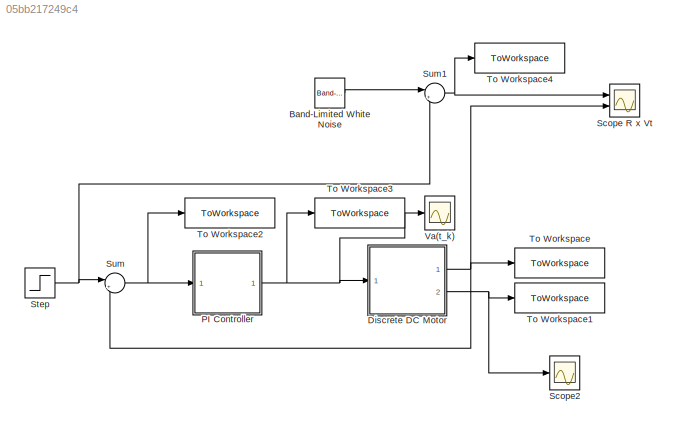
MODEL slx_05bb217249c4
KIND model
CONFIG AbsTol = auto
CONFIG EnableMultiTasking = off
CONFIG FixedStep = auto
CONFIG MaxStep = auto
CONFIG MinStep = auto
CONFIG RelTol = 1e-3
CONFIG SampleTimeConstraint = Unconstrained
CONFIG SolverName = ode4
CONFIG StartTime = 0.0
CONFIG StopTime = 15
BLOCK [Reference] Band-Limited White Noise  REF=simulink/Sources/Band-Limited
White Noise
  Ports = [0, 1]
  SourceBlock = simulink/Sources/Band-Limited\nWhite Noise
  SourceProductBaseCode = SL
  SourceType = Band-Limited White Noise.
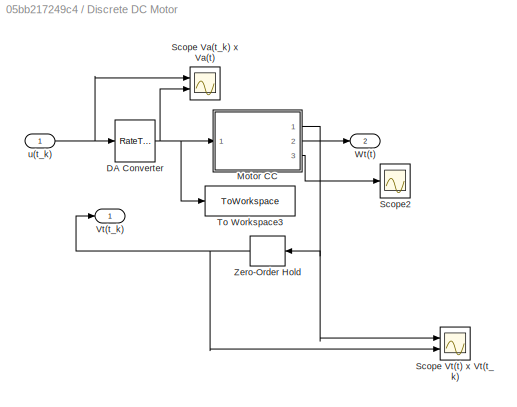
BLOCK [SubSystem] Discrete DC Motor
  Ports = [1, 2]
  RequestExecContextInheritance = off
BLOCK [RateTransition] Discrete DC Motor/DA Converter
  OutPortSampleTime = h_motor
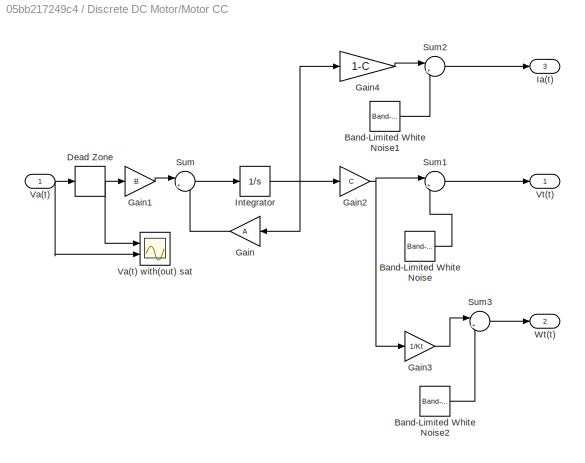
BLOCK [SubSystem] Discrete DC Motor/Motor CC
  Ports = [1, 3]
  RequestExecContextInheritance = off
BLOCK [Reference] Discrete DC Motor/Motor CC/Band-Limited White Noise  REF=simulink/Sources/Band-Limited
White Noise
  Ports = [0, 1]
  SourceBlock = simulink/Sources/Band-Limited\nWhite Noise
  SourceProductBaseCode = SL
  SourceType = Band-Limited White Noise.
BLOCK [Reference] Discrete DC Motor/Motor CC/Band-Limited White Noise1  REF=simulink/Sources/Band-Limited
White Noise
  Ports = [0, 1]
  SourceBlock = simulink/Sources/Band-Limited\nWhite Noise
  SourceProductBaseCode = SL
  SourceType = Band-Limited White Noise.
BLOCK [Reference] Discrete DC Motor/Motor CC/Band-Limited White Noise2  REF=simulink/Sources/Band-Limited
White Noise
  Ports = [0, 1]
  SourceBlock = simulink/Sources/Band-Limited\nWhite Noise
  SourceProductBaseCode = SL
  SourceType = Band-Limited White Noise.
BLOCK [DeadZone] Discrete DC Motor/Motor CC/Dead Zone
  LowerValue = -M
  UpperValue = M
BLOCK [Gain] Discrete DC Motor/Motor CC/Gain
  Gain = A
  Multiplication = Matrix(K*u)
  NameLocation = top
BLOCK [Gain] Discrete DC Motor/Motor CC/Gain1
  Gain = B
  Multiplication = Matrix(K*u)
BLOCK [Gain] Discrete DC Motor/Motor CC/Gain2
  Gain = C
  Multiplication = Matrix(K*u)
BLOCK [Gain] Discrete DC Motor/Motor CC/Gain3
  Gain = 1/Kt
BLOCK [Gain] Discrete DC Motor/Motor CC/Gain4
  Gain = 1-C
  Multiplication = Matrix(K*u)
BLOCK [Outport] Discrete DC Motor/Motor CC/Ia(t)
  Port = 3
BLOCK [Integrator] Discrete DC Motor/Motor CC/Integrator
  InitialCondition = x0
  Ports = [1, 1]
BLOCK [Sum] Discrete DC Motor/Motor CC/Sum
  Inputs = |++
  Ports = [2, 1]
BLOCK [Sum] Discrete DC Motor/Motor CC/Sum1
  Inputs = |++
  Ports = [2, 1]
BLOCK [Sum] Discrete DC Motor/Motor CC/Sum2
  Inputs = |++
  Ports = [2, 1]
BLOCK [Sum] Discrete DC Motor/Motor CC/Sum3
  Inputs = |++
  Ports = [2, 1]
BLOCK [Inport] Discrete DC Motor/Motor CC/Va(t)
BLOCK [Scope] Discrete DC Motor/Motor CC/Va(t) with(out) sat
  Floating = off
  NumInputPorts = 2
  Ports = [2]
  ScopeSpecificationString = Simulink.scopes.TimeScopeBlockCfg('CurrentConfiguration', extmgr.ConfigurationSet(extmgr.Configuration('Core','General UI',true),extmgr.Configuration('Core','Source UI',true),extmgr.Configuration('Sources','WiredSimulink',true,'DataLoggingVariableName','ScopeData1'),extmgr.Configuration('Visuals','Time Domain',true,'SerializedDisplays',{struct('MinYLimReal','-1.70628','MaxYLimReal','10.19503','YLa...<+1424ch>
BLOCK [Outport] Discrete DC Motor/Motor CC/Vt(t)
BLOCK [Outport] Discrete DC Motor/Motor CC/Wt(t)
  Port = 2
BLOCK [Scope] Discrete DC Motor/Scope Va(t_k) x Va(t)
  Floating = off
  NameLocation = top
  NumInputPorts = 2
  Ports = [2]
  ScopeSpecificationString = Simulink.scopes.TimeScopeBlockCfg('CurrentConfiguration', extmgr.ConfigurationSet(extmgr.Configuration('Core','General UI',true),extmgr.Configuration('Core','Source UI',true),extmgr.Configuration('Sources','WiredSimulink',true,'DataLoggingVariableName','ScopeData2'),extmgr.Configuration('Visuals','Time Domain',true,'SerializedDisplays',{struct('MinYLimReal','6.70203','MaxYLimReal','6.70676','YLabe...<+1447ch>
BLOCK [Scope] Discrete DC Motor/Scope Vt(t) x Vt(t_k)
  Floating = off
  NumInputPorts = 2
  Ports = [2]
  ScopeSpecificationString = Simulink.scopes.TimeScopeBlockCfg('CurrentConfiguration', extmgr.ConfigurationSet(extmgr.Configuration('Core','General UI',true),extmgr.Configuration('Core','Source UI',true),extmgr.Configuration('Sources','WiredSimulink',true,'DataLoggingVariableName','ScopeData3'),extmgr.Configuration('Visuals','Time Domain',true,'SerializedDisplays',{struct('MinYLimReal','9.11075','MaxYLimReal','9.11457','YLabe...<+1456ch>
BLOCK [Scope] Discrete DC Motor/Scope2
  Floating = off
  NumInputPorts = 1
  Ports = [1]
  ScopeSpecificationString = Simulink.scopes.TimeScopeBlockCfg('CurrentConfiguration', extmgr.ConfigurationSet(extmgr.Configuration('Core','General UI',true),extmgr.Configuration('Core','Source UI',true),extmgr.Configuration('Sources','WiredSimulink',true,'DataLoggingVariableName','ScopeData2'),extmgr.Configuration('Visuals','Time Domain',true,'SerializedDisplays',{struct('MinYLimReal','-0.4481','MaxYLimReal','6.10796','YLabe...<+1424ch>
BLOCK [ToWorkspace] Discrete DC Motor/To Workspace3
  FixptAsFi = on
  MaxDataPoints = inf
  Ports = [1]
  SampleTime = -1
  SaveFormat = Structure With Time
  VariableName = Va
BLOCK [Outport] Discrete DC Motor/Vt(t_k)
BLOCK [Outport] Discrete DC Motor/Wt(t)
  Port = 2
BLOCK [ZeroOrderHold] Discrete DC Motor/Zero-Order Hold
  NameLocation = top
  SampleTime = h
BLOCK [Inport] Discrete DC Motor/u(t_k)
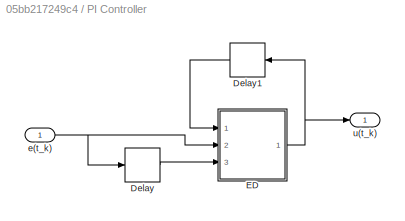
BLOCK [SubSystem] PI Controller
  Ports = [1, 1]
  RequestExecContextInheritance = off
BLOCK [Delay] PI Controller/Delay
  DelayLength = 1
  InputPortMap = u0
  Ports = [1, 1]
  SampleTime = h
BLOCK [Delay] PI Controller/Delay1
  DelayLength = 1
  InitialCondition = 0
  InputPortMap = u0
  NameLocation = top
  Ports = [1, 1]
  SampleTime = h
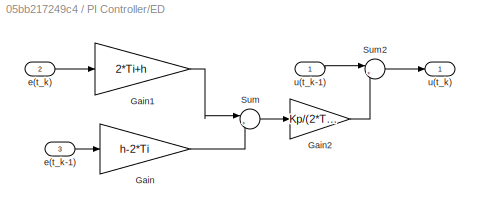
BLOCK [SubSystem] PI Controller/ED
  Ports = [3, 1]
  RequestExecContextInheritance = off
BLOCK [Gain] PI Controller/ED/Gain
  Gain = h-2*Ti
BLOCK [Gain] PI Controller/ED/Gain1
  Gain = 2*Ti+h
BLOCK [Gain] PI Controller/ED/Gain2
  Gain = Kp/(2*Ti)
BLOCK [Sum] PI Controller/ED/Sum
  Inputs = |++
  Ports = [2, 1]
BLOCK [Sum] PI Controller/ED/Sum2
  Inputs = |++
  Ports = [2, 1]
BLOCK [Inport] PI Controller/ED/e(t_k)
  Port = 2
BLOCK [Inport] PI Controller/ED/e(t_k-1)
  Port = 3
BLOCK [Outport] PI Controller/ED/u(t_k)
BLOCK [Inport] PI Controller/ED/u(t_k-1)
  NameLocation = top
BLOCK [Inport] PI Controller/e(t_k)
BLOCK [Outport] PI Controller/u(t_k)
BLOCK [Scope] Scope R x Vt
  Floating = off
  NumInputPorts = 2
  Ports = [2]
  ScopeSpecificationString = Simulink.scopes.TimeScopeBlockCfg('CurrentConfiguration', extmgr.ConfigurationSet(extmgr.Configuration('Core','General UI',true),extmgr.Configuration('Core','Source UI',true),extmgr.Configuration('Sources','WiredSimulink',true,'DataLoggingVariableName','ScopeData1'),extmgr.Configuration('Visuals','Time Domain',true,'SerializedDisplays',{struct('MinYLimReal','-0.76471','MaxYLimReal','6.30323','YLab...<+1458ch>
BLOCK [Scope] Scope2
  Floating = off
  NumInputPorts = 1
  Ports = [1]
  ScopeSpecificationString = Simulink.scopes.TimeScopeBlockCfg('CurrentConfiguration', extmgr.ConfigurationSet(extmgr.Configuration('Core','General UI',true),extmgr.Configuration('Core','Source UI',true),extmgr.Configuration('Sources','WiredSimulink',true),extmgr.Configuration('Visuals','Time Domain',true,'SerializedDisplays',{struct('MinYLimReal','-100.65151','MaxYLimReal','527.09323','YLabelReal','','MinYLimMag',' 0.00000',...<+1427ch>
BLOCK [Step] Step
  After = R_finalvalue
  Before = R_initialvalue
  SampleTime = h
  Time = R_steptime
BLOCK [Sum] Sum
  Inputs = |+-
  Ports = [2, 1]
BLOCK [Sum] Sum1
  Inputs = |++
  Ports = [2, 1]
BLOCK [ToWorkspace] To Workspace
  FixptAsFi = on
  MaxDataPoints = inf
  Ports = [1]
  SampleTime = -1
  SaveFormat = Structure With Time
  VariableName = Vtd
BLOCK [ToWorkspace] To Workspace1
  FixptAsFi = on
  MaxDataPoints = inf
  Ports = [1]
  SampleTime = -1
  SaveFormat = Structure With Time
  VariableName = Wt
BLOCK [ToWorkspace] To Workspace2
  FixptAsFi = on
  MaxDataPoints = inf
  Ports = [1]
  SampleTime = -1
  SaveFormat = Structure With Time
  VariableName = e
BLOCK [ToWorkspace] To Workspace3
  FixptAsFi = on
  MaxDataPoints = inf
  Ports = [1]
  SampleTime = -1
  SaveFormat = Structure With Time
  VariableName = Vad
BLOCK [ToWorkspace] To Workspace4
  FixptAsFi = on
  MaxDataPoints = inf
  Ports = [1]
  SampleTime = -1
  SaveFormat = Structure With Time
  VariableName = ref
BLOCK [Scope] Va(t_k)
  Floating = off
  NumInputPorts = 1
  Ports = [1]
  ScopeSpecificationString = Simulink.scopes.TimeScopeBlockCfg('CurrentConfiguration', extmgr.ConfigurationSet(extmgr.Configuration('Core','General UI',true),extmgr.Configuration('Core','Source UI',true),extmgr.Configuration('Sources','WiredSimulink',true,'DataLoggingVariableName','ScopeData1'),extmgr.Configuration('Visuals','Time Domain',true,'SerializedDisplays',{struct('MinYLimReal','-2.18067','MaxYLimReal','9.43827','YLab...<+1445ch>
LINE Band-Limited White Noise:1 -> Sum1:1
NET Discrete DC Motor/DA Converter:1 -> Discrete DC Motor/Motor CC:1, Discrete DC Motor/Scope Va(t_k) x Va(t):2, Discrete DC Motor/To Workspace3:1
LINE Discrete DC Motor/Motor CC/Band-Limited White Noise1:1 -> Discrete DC Motor/Motor CC/Sum2:2
LINE Discrete DC Motor/Motor CC/Band-Limited White Noise2:1 -> Discrete DC Motor/Motor CC/Sum3:2
LINE Discrete DC Motor/Motor CC/Band-Limited White Noise:1 -> Discrete DC Motor/Motor CC/Sum1:2
NET Discrete DC Motor/Motor CC/Dead Zone:1 -> Discrete DC Motor/Motor CC/Gain1:1, Discrete DC Motor/Motor CC/Va(t) with(out) sat:1
LINE Discrete DC Motor/Motor CC/Gain1:1 -> Discrete DC Motor/Motor CC/Sum:1
NET Discrete DC Motor/Motor CC/Gain2:1 -> Discrete DC Motor/Motor CC/Gain3:1, Discrete DC Motor/Motor CC/Sum1:1
LINE Discrete DC Motor/Motor CC/Gain3:1 -> Discrete DC Motor/Motor CC/Sum3:1
LINE Discrete DC Motor/Motor CC/Gain4:1 -> Discrete DC Motor/Motor CC/Sum2:1
LINE Discrete DC Motor/Motor CC/Gain:1 -> Discrete DC Motor/Motor CC/Sum:2
NET Discrete DC Motor/Motor CC/Integrator:1 -> Discrete DC Motor/Motor CC/Gain2:1, Discrete DC Motor/Motor CC/Gain4:1, Discrete DC Motor/Motor CC/Gain:1
LINE Discrete DC Motor/Motor CC/Sum1:1 -> Discrete DC Motor/Motor CC/Vt(t):1
LINE Discrete DC Motor/Motor CC/Sum2:1 -> Discrete DC Motor/Motor CC/Ia(t):1
LINE Discrete DC Motor/Motor CC/Sum3:1 -> Discrete DC Motor/Motor CC/Wt(t):1
LINE Discrete DC Motor/Motor CC/Sum:1 -> Discrete DC Motor/Motor CC/Integrator:1
NET Discrete DC Motor/Motor CC/Va(t):1 -> Discrete DC Motor/Motor CC/Dead Zone:1, Discrete DC Motor/Motor CC/Va(t) with(out) sat:2
NET Discrete DC Motor/Motor CC:1 -> Discrete DC Motor/Scope Vt(t) x Vt(t_k):1, Discrete DC Motor/Zero-Order Hold:1
LINE Discrete DC Motor/Motor CC:2 -> Discrete DC Motor/Wt(t):1
LINE Discrete DC Motor/Motor CC:3 -> Discrete DC Motor/Scope2:1
NET Discrete DC Motor/Zero-Order Hold:1 -> Discrete DC Motor/Scope Vt(t) x Vt(t_k):2, Discrete DC Motor/Vt(t_k):1
NET Discrete DC Motor/u(t_k):1 -> Discrete DC Motor/DA Converter:1, Discrete DC Motor/Scope Va(t_k) x Va(t):1
NET Discrete DC Motor:1 -> Scope R x Vt:2, Sum:2, To Workspace:1
NET Discrete DC Motor:2 -> Scope2:1, To Workspace1:1
LINE PI Controller/Delay1:1 -> PI Controller/ED:1
LINE PI Controller/Delay:1 -> PI Controller/ED:3
LINE PI Controller/ED/Gain1:1 -> PI Controller/ED/Sum:1
LINE PI Controller/ED/Gain2:1 -> PI Controller/ED/Sum2:2
LINE PI Controller/ED/Gain:1 -> PI Controller/ED/Sum:2
LINE PI Controller/ED/Sum2:1 -> PI Controller/ED/u(t_k):1
LINE PI Controller/ED/Sum:1 -> PI Controller/ED/Gain2:1
LINE PI Controller/ED/e(t_k):1 -> PI Controller/ED/Gain1:1
LINE PI Controller/ED/e(t_k-1):1 -> PI Controller/ED/Gain:1
LINE PI Controller/ED/u(t_k-1):1 -> PI Controller/ED/Sum2:1
NET PI Controller/ED:1 -> PI Controller/Delay1:1, PI Controller/u(t_k):1
NET PI Controller/e(t_k):1 -> PI Controller/Delay:1, PI Controller/ED:2
NET PI Controller:1 -> Discrete DC Motor:1, To Workspace3:1, Va(t_k):1
NET Step:1 -> Sum1:2, Sum:1
NET Sum1:1 -> Scope R x Vt:1, To Workspace4:1
NET Sum:1 -> PI Controller:1, To Workspace2:1
note: NET lines group one-source signal fan-out (src -> all destinations, sorted); 1:1 wires keep LINE
